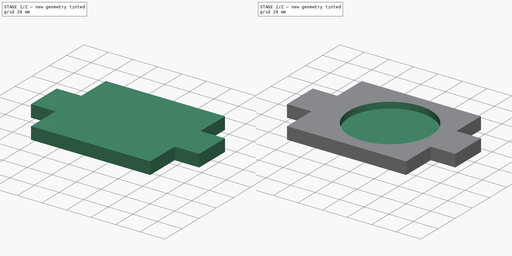
[diagram: build sequence overview — one tinted view per stage of 2, left to right]
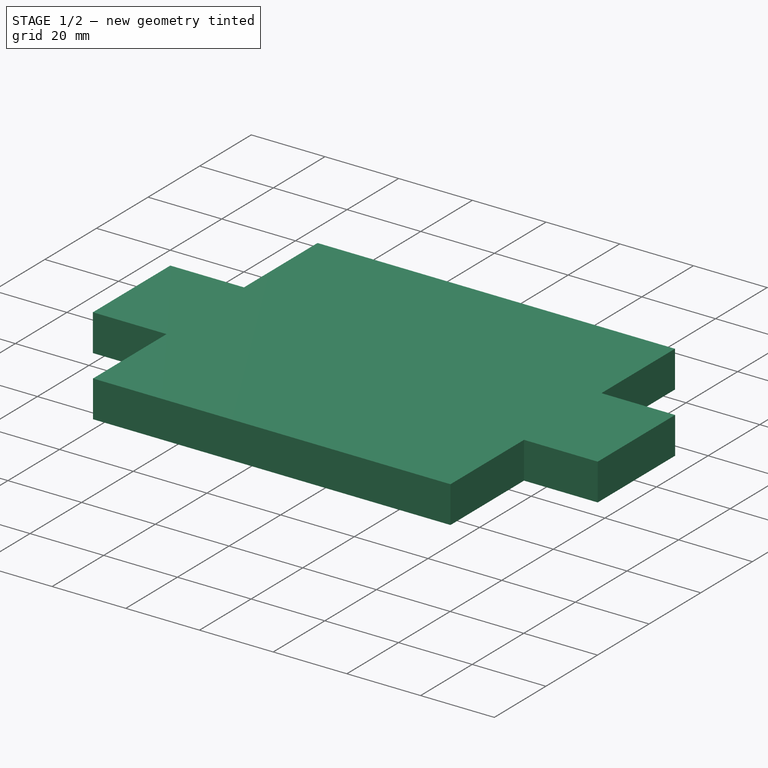
[diagram: stage 1 of 2 — iso view after this stage's code; geometry added in this stage tinted green]
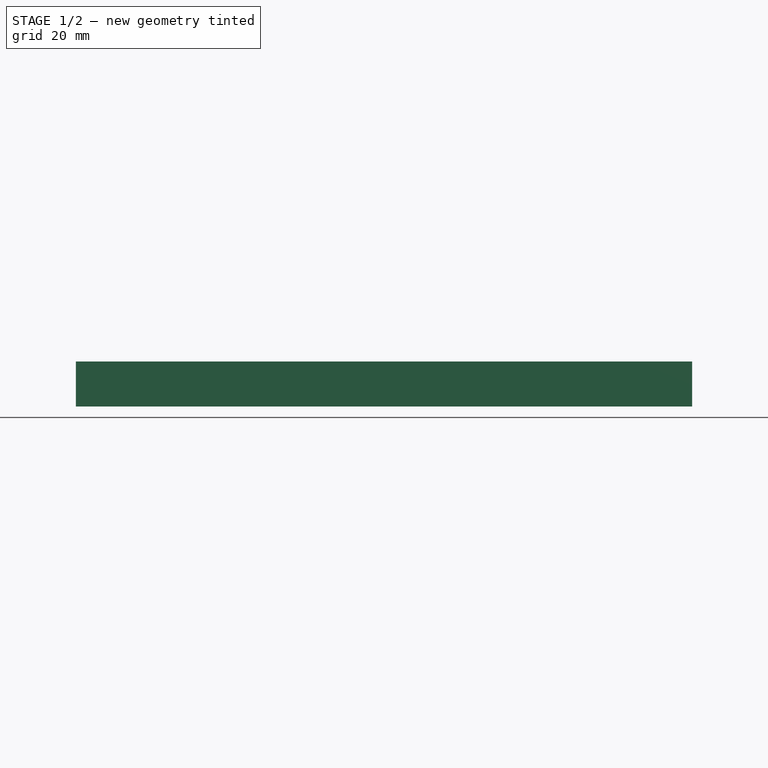
[diagram: stage 1 of 2 — front view after this stage's code; geometry added in this stage tinted green]
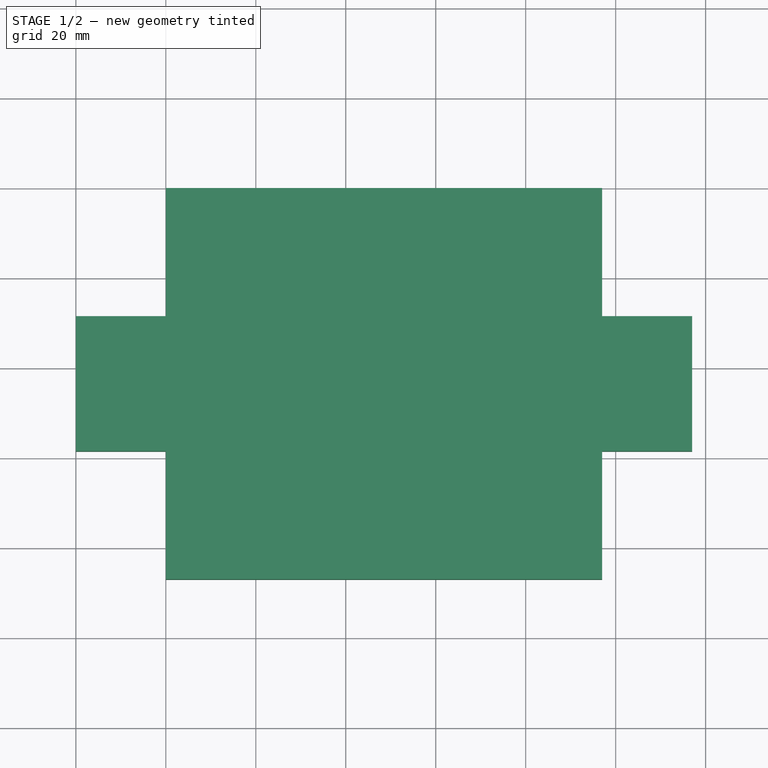
[diagram: stage 1 of 2 — top view after this stage's code; geometry added in this stage tinted green]
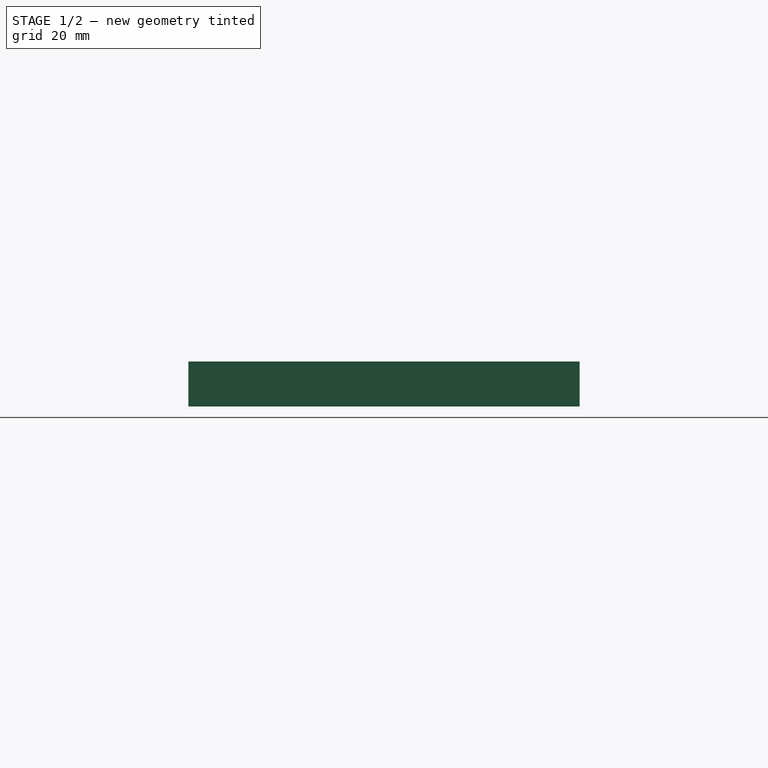
[diagram: stage 1 of 2 — right view after this stage's code; geometry added in this stage tinted green]
FCSTD DOCUMENT  (FreeCAD 0.19R24291 (Git))
Label: Z gantry
License: All rights reserved
LicenseURL: http://en.wikipedia.org/wiki/All_rights_reserved
objects: Sketcher::SketchObject×2, PartDesign::Pad×1, PartDesign::Pocket×1, PartDesign::Body×1
note: 7 computed .brp shape members not serialized (recipe doc carries the construction recipe); baked Part::Feature solids carry a one-line shape summary decoded from their .brp

FEATURE [Sketcher::SketchObject] Sketch
  FullyConstrained = false
  MapMode = 5
  Support = -> [XY_Plane]
  sketch-geometry (35):
    g0: LineSegment StartX=0 StartY=-28.5 StartZ=0 EndX=20 EndY=-28.5 EndZ=0
    g1: LineSegment StartX=20 StartY=-28.5 StartZ=0 EndX=20 EndY=0 EndZ=0
    g2: LineSegment StartX=20 StartY=0 StartZ=0 EndX=117 EndY=0 EndZ=0
    g3: LineSegment StartX=117 StartY=0 StartZ=0 EndX=117 EndY=-28.5 EndZ=0
    g4: LineSegment StartX=117 StartY=-28.5 StartZ=0 EndX=137 EndY=-28.5 EndZ=0
    g5: LineSegment StartX=137 StartY=-28.5 StartZ=0 EndX=137 EndY=-58.5 EndZ=0
    g6: LineSegment StartX=137 StartY=-58.5 StartZ=0 EndX=117 EndY=-58.5 EndZ=0
    g7: LineSegment StartX=117 StartY=-58.5 StartZ=0 EndX=117 EndY=-87 EndZ=0
    g8: LineSegment StartX=117 StartY=-87 StartZ=0 EndX=20 EndY=-87 EndZ=0
    g9: LineSegment StartX=20 StartY=-87 StartZ=0 EndX=20 EndY=-58.5 EndZ=0
    g10: LineSegment StartX=20 StartY=-58.5 StartZ=0 EndX=0 EndY=-58.5 EndZ=0
    g11: LineSegment StartX=0 StartY=-58.5 StartZ=0 EndX=0 EndY=-28.5 EndZ=0
    g12: LineSegment StartX=117 StartY=0 StartZ=0 EndX=73.5 EndY=-43.5 EndZ=0
    g13: LineSegment StartX=73.5 StartY=-43.5 StartZ=0 EndX=117 EndY=-87 EndZ=0
    g14: Circle CenterX=73.5 CenterY=-43.5 CenterZ=0 NormalX=0 NormalY=0 NormalZ=1 AngleXU=0 Radius=33.5
    g15: LineSegment StartX=-72.642 StartY=-11 StartZ=0 EndX=162.865 EndY=-11 EndZ=0
    g16: LineSegment StartX=162.865 StartY=-11 StartZ=0 EndX=162.865 EndY=-21 EndZ=0
    g17: LineSegment StartX=162.865 StartY=-21 StartZ=0 EndX=-72.642 EndY=-21 EndZ=0
    g18: LineSegment StartX=-72.642 StartY=-21 StartZ=0 EndX=-72.642 EndY=-11 EndZ=0
    g19: LineSegment StartX=162.865 StartY=-66 StartZ=0 EndX=-72.642 EndY=-66 EndZ=0
    g20: LineSegment StartX=-72.642 StartY=-66 StartZ=0 EndX=-72.642 EndY=-76 EndZ=0
    g21: LineSegment StartX=-72.642 StartY=-76 StartZ=0 EndX=162.865 EndY=-76 EndZ=0
    g22: LineSegment StartX=162.865 StartY=-76 StartZ=0 EndX=162.865 EndY=-66 EndZ=0
    g23: LineSegment StartX=117 StartY=0 StartZ=0 EndX=162.865 EndY=-11 EndZ=0
    g24: LineSegment StartX=117 StartY=-87 StartZ=0 EndX=162.865 EndY=-76 EndZ=0
    g25: LineSegment StartX=20 StartY=-10 StartZ=0 EndX=117 EndY=-10 EndZ=0
    g26: LineSegment StartX=107 StartY=0 StartZ=0 EndX=107 EndY=-87 EndZ=0
    g27: LineSegment StartX=-24 StartY=0 StartZ=0 EndX=-24 EndY=-87 EndZ=0
    g28: LineSegment StartX=-23 StartY=-22 StartZ=0 EndX=20 EndY=-22 EndZ=0
    g29: LineSegment StartX=20 StartY=-22 StartZ=0 EndX=20 EndY=-65 EndZ=0
    g30: LineSegment StartX=20 StartY=-65 StartZ=0 EndX=-23 EndY=-65 EndZ=0
    g31: LineSegment StartX=-23 StartY=-65 StartZ=0 EndX=-23 EndY=-22 EndZ=0
    g32: LineSegment StartX=20 StartY=-58.5 StartZ=0 EndX=20 EndY=-65 EndZ=0
    g33: LineSegment StartX=20 StartY=-28.5 StartZ=0 EndX=20 EndY=-22 EndZ=0
    g34: LineSegment StartX=40 StartY=0 StartZ=0 EndX=40 EndY=-87 EndZ=0
  constraints (101):
    c: PointOnObject(g0,g-2)
    c: Horizontal(g0)
    c: Coincident(g1,g0)
    c: PointOnObject(g1,g-1)
    c: Vertical(g1)
    c: Coincident(g2,g1)
    c: Coincident(g3,g2)
    c: Horizontal(g4)
    c: Coincident(g5,g4)
    c: Vertical(g5)
    c: Horizontal(g6)
    c: Coincident(g7,g6)
    c: Vertical(g7)
    c: Coincident(g8,g7)
    c: Horizontal(g8)
    c: Coincident(g9,g8)
    c: Vertical(g9)
    c: Coincident(g10,g9)
    c: PointOnObject(g10,g-2)
    c: Horizontal(g10)
    c: Coincident(g11,g10)
    c: Horizontal(g2)
    c: Vertical(g3)
    c: PointOnObject(g0,g9)
    c: PointOnObject(g3,g0)
    c: PointOnObject(g6,g3)
    c: Coincident(g3,g4)
    c: Equal(g4,g0)
    c: Coincident(g6,g5)
    c: PointOnObject(g9,g6)
    c: Equal(g1,g9)
    c: Coincident(g12,g2)
    c: Coincident(g13,g12)
    c: Coincident(g13,g7)
    c: Coincident(g14,g12)
    c: Equal(g12,g13)
    c: Coincident(g11,g0)
    c: Diameter(g14) = 67
    c: Coincident(g15,g16)
    c: Coincident(g16,g17)
    c: Coincident(g17,g18)
    c: Coincident(g18,g15)
    c: Horizontal(g15)
    c: Horizontal(g17)
    c: Vertical(g16)
    c: Vertical(g18)
    c: Coincident(g19,g20)
    c: Coincident(g20,g21)
    c: Coincident(g21,g22)
    c: Coincident(g22,g19)
    c: Horizontal(g19)
    c: Horizontal(g21)
    c: Vertical(g20)
    c: Vertical(g22)
    c: DistanceY(g16,g16) = 10
    c: DistanceY(g21,g16) = 55
    c: Equal(g22,g16)
    c: Coincident(g23,g2)
    c: Coincident(g23,g15)
    c: Coincident(g24,g7)
    c: Coincident(g24,g21)
    c: PointOnObject(g19,g18)
    c: PointOnObject(g16,g22)
    c: Equal(g23,g24)
    c: DistanceY(g19,g5) = 7.5
    c: Horizontal(g25)
    c: Tangent(g25,g14)
    c: PointOnObject(g25,g1)
    c: PointOnObject(g25,g3)
    c: DistanceY(g25,g2) = 10
    c: PointOnObject(g26,g2)
    c: PointOnObject(g26,g8)
    c: Vertical(g26)
    c: Tangent(g14,g26)
    c: DistanceX(g26,g2) = 10
    c: DistanceX(g4,g4) = 20
    c: Vertical(g27)
    c: DistanceX(g27,g0) = 24
    c: PointOnObject(g27,g2)
    c: PointOnObject(g27,g8)
    c: Coincident(g28,g29)
    c: Coincident(g29,g30)
    c: Coincident(g30,g31)
    c: Coincident(g31,g28)
    c: Horizontal(g28)
    c: Horizontal(g30)
    c: Vertical(g29)
    c: Vertical(g31)
    c: DistanceX(g28,g28) = 43
    c: Equal(g28,g31)
    c: Coincident(g32,g9)
    c: Coincident(g32,g29)
    c: Coincident(g33,g0)
    c: Coincident(g33,g28)
    c: Equal(g33,g32)
    c: PointOnObject(g0,g29)
    c: PointOnObject(g34,g2)
    c: PointOnObject(g34,g8)
    c: Vertical(g34)
    c: Tangent(g34,g14)
    c: DistanceX(g1,g34) = 20
FEATURE [PartDesign::Pad] Pad
  Direction = (1,1,1)
  Length = 10
  Length2 = 100
  Profile = -> Sketch
  Reversed = true
  Type = 0
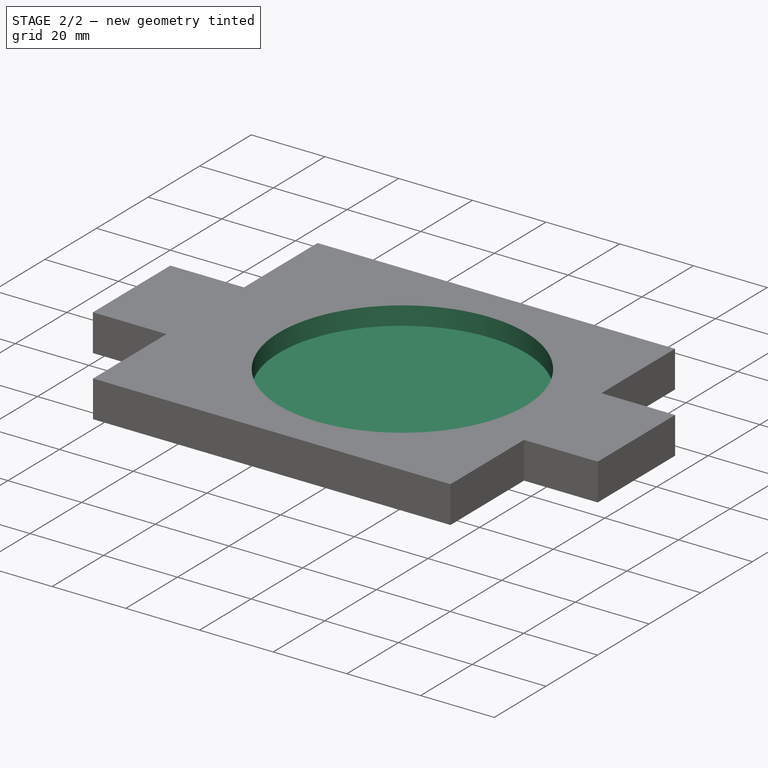
[diagram: stage 2 of 2 — iso view after this stage's code; geometry added in this stage tinted green]
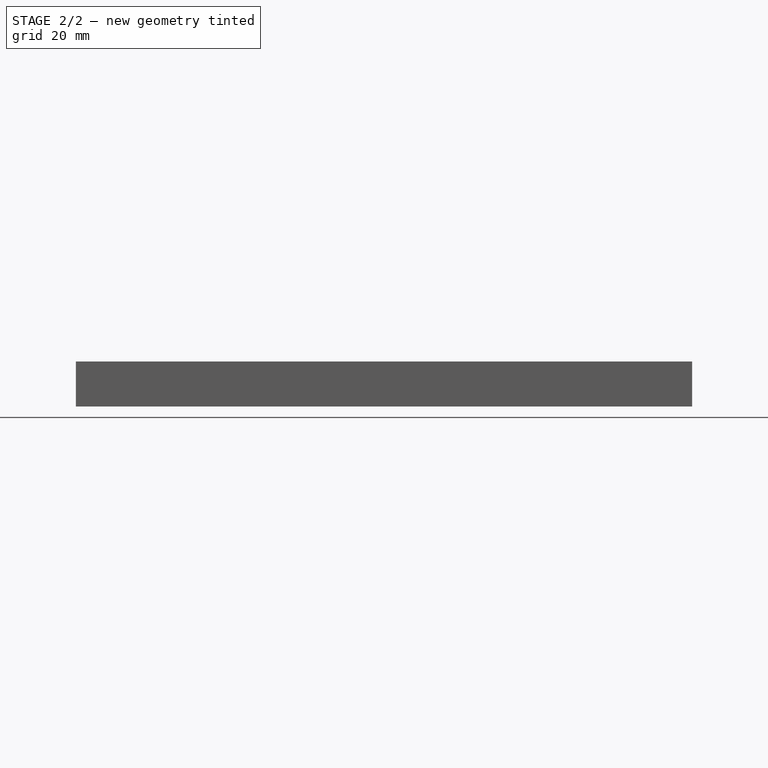
[diagram: stage 2 of 2 — front view after this stage's code; geometry added in this stage tinted green]
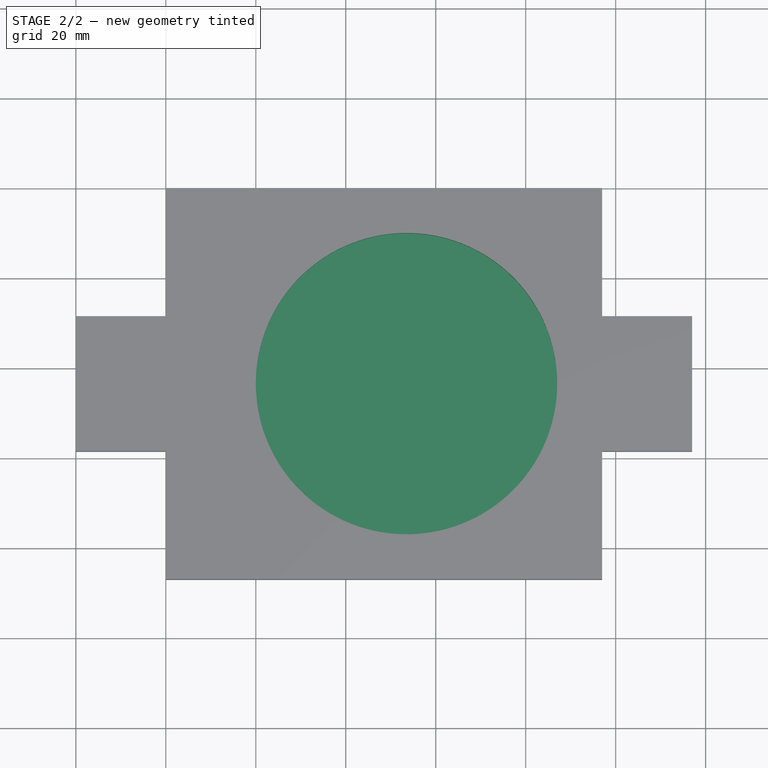
[diagram: stage 2 of 2 — top view after this stage's code; geometry added in this stage tinted green]
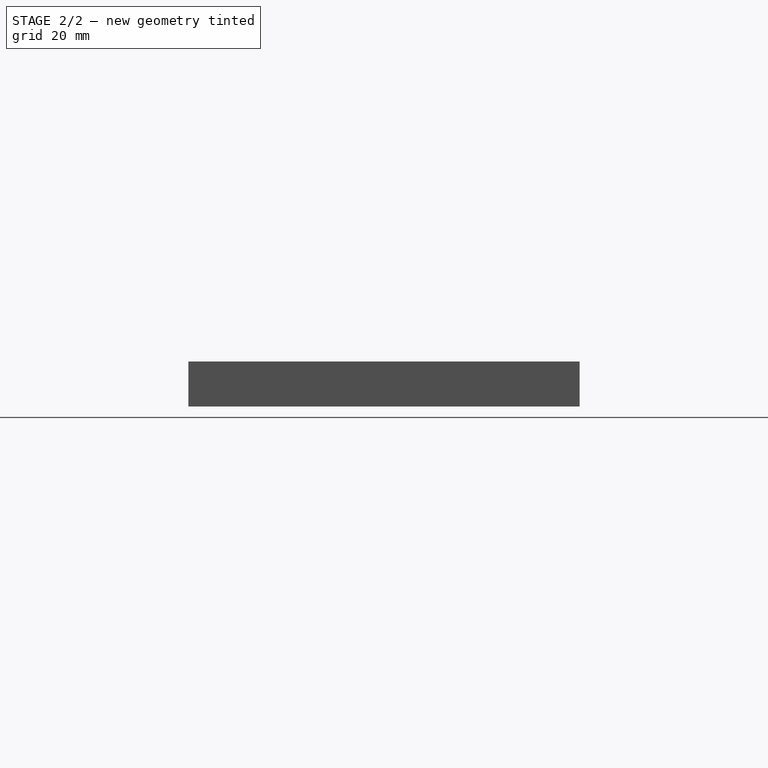
[diagram: stage 2 of 2 — right view after this stage's code; geometry added in this stage tinted green]
FEATURE [Sketcher::SketchObject] Sketch001
  ExternalGeometry = -> [Pad]
  FullyConstrained = true
  MapMode = 5
  Support = -> [XY_Plane]
  sketch-geometry (4):
    g0: Circle CenterX=73.5 CenterY=-43.5 CenterZ=0 NormalX=0 NormalY=0 NormalZ=1 AngleXU=0 Radius=33.5
    g1: LineSegment StartX=107 StartY=-31.9483 StartZ=0 EndX=107 EndY=-55.0517 EndZ=0
    g2: LineSegment StartX=117 StartY=-28.5 StartZ=0 EndX=73.5 EndY=-43.5 EndZ=0
    g3: LineSegment StartX=73.5 StartY=-43.5 StartZ=0 EndX=117 EndY=-58.5 EndZ=0
  constraints (11):
    c: Vertical(g1)
    c: Tangent(g0,g1)
    c: Coincident(g2,g-4)
    c: Coincident(g2,g0)
    c: Coincident(g3,g0)
    c: Coincident(g3,g-3)
    c: PointOnObject(g1,g2)
    c: PointOnObject(g1,g3)
    c: DistanceX(g1,g2) = 10
    c: Equal(g2,g3)
    c: Diameter(g0) = 67
FEATURE [PartDesign::Pocket] Pocket
  BaseFeature = -> Pad
  Length = 5
  Length2 = 100
  Profile = -> Sketch001
  Type = 0
FEATURE [PartDesign::Body] Body
  Group = -> [Sketch,Pad,Sketch001,Pocket]
  Origin = -> Origin
  Tip = -> Pocket
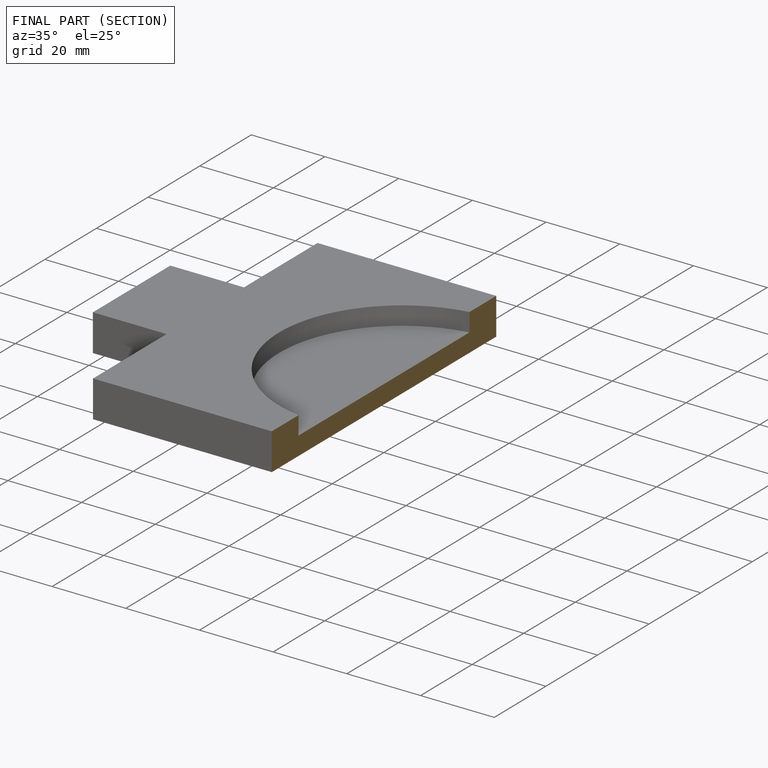
[diagram: finished part — half-section view (interior)]
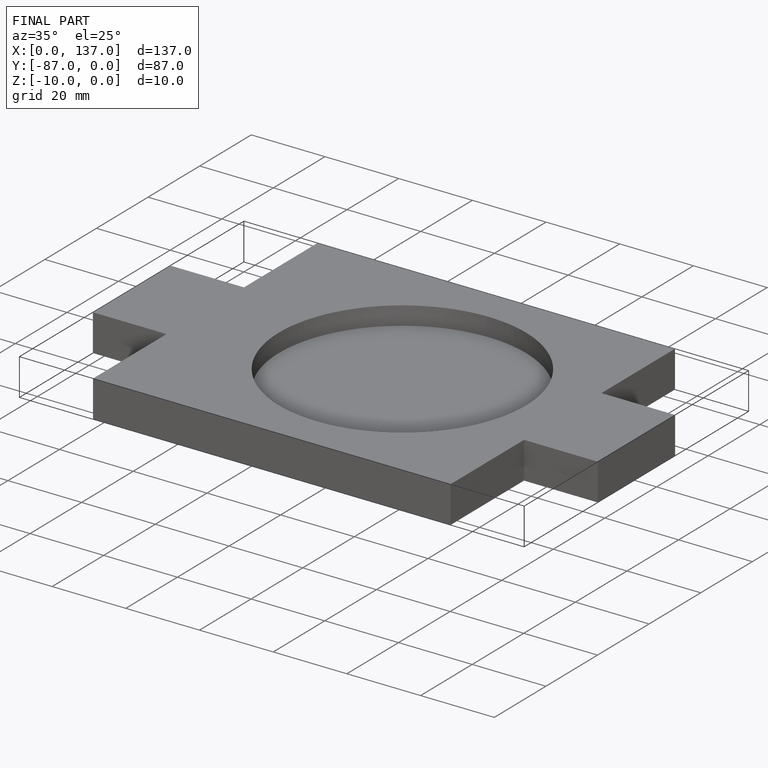
[diagram: finished part — iso view with bounding-box wireframe]
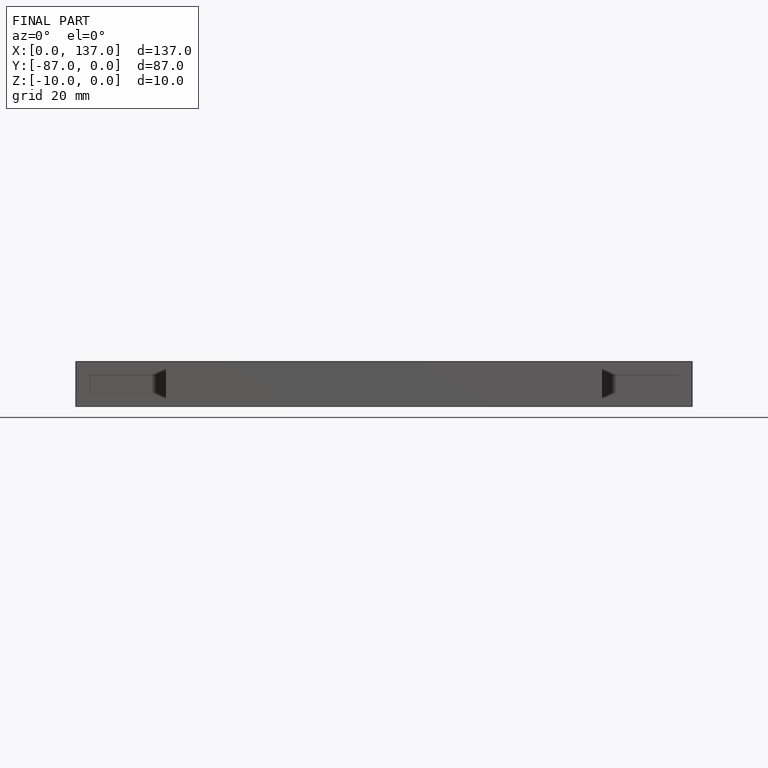
[diagram: finished part — front view with bounding-box wireframe]
